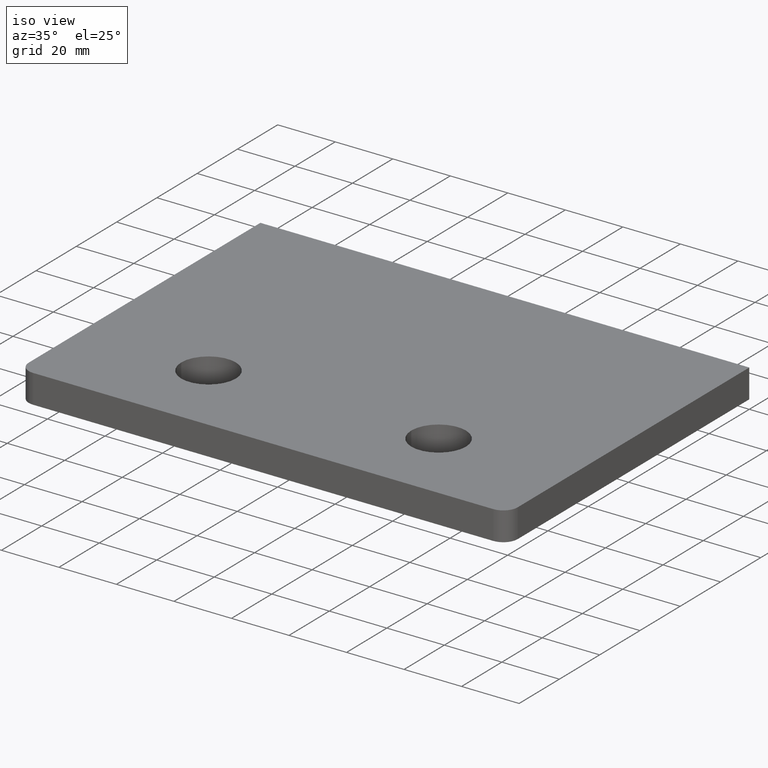
[diagram: clean part render]
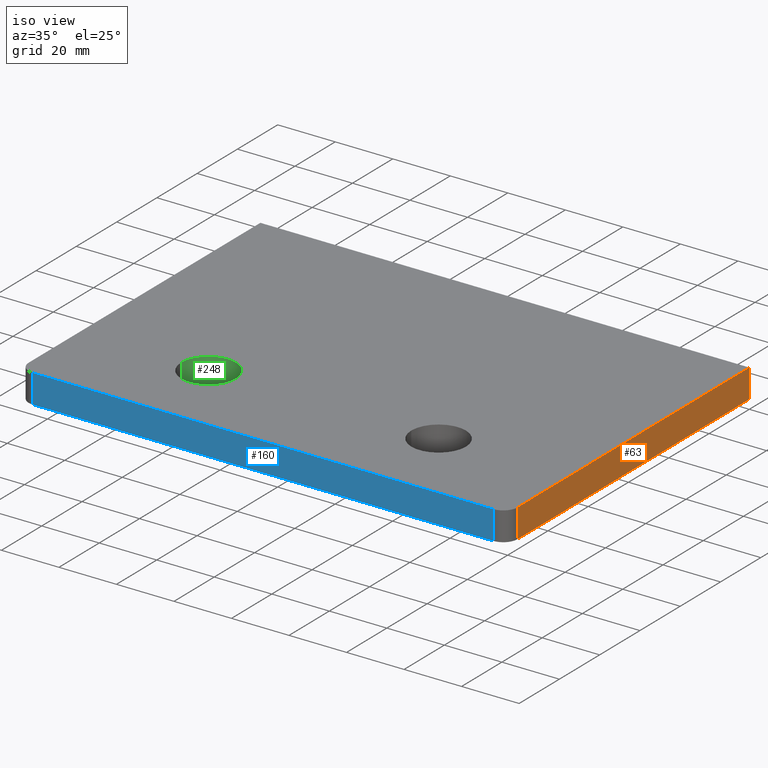
[diagram: same view with three faces highlighted in distinct colors, each labeled with its STEP entity id]
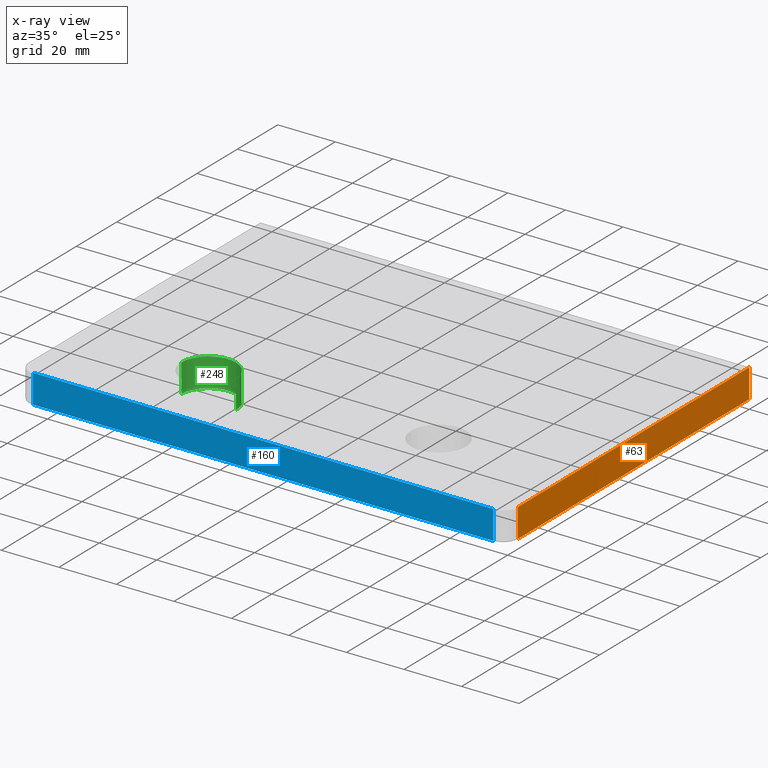
[diagram: x-ray of the same camera — body ghosted, the three highlighted faces saturated]
A machine part, iso view with three faces highlighted in distinct colors.
The next image is the same camera in x-ray (body ghosted, the three faces saturated) — at least one of them is partly hidden behind the body in this view.
Their STEP definitions:

[orange] entity #63 — the highlighted planar face has unit normal (1, -0, 0).
#11 = DIRECTION ( 'NONE',  ( 1.000000000000000000, -8.128421619622342965E-33, 0.000000000000000000 ) ) ;
#32 = VECTOR ( 'NONE', #156, 1000.000000000000000 ) ;
#53 = CARTESIAN_POINT ( 'NONE',  ( 4.064210809811171209E-32, 4.999999999999999112, -10.00000000000000000 ) ) ;
#56 = LINE ( 'NONE', #222, #419 ) ;
#60 = DIRECTION ( 'NONE',  ( 0.000000000000000000, 0.000000000000000000, 1.000000000000000000 ) ) ;
#63 = ADVANCED_FACE ( 'NONE', ( #212 ), #353, .T. ) ;
#81 = ORIENTED_EDGE ( 'NONE', *, *, #233, .T. ) ;
#83 = LINE ( 'NONE', #194, #32 ) ;
#113 = LINE ( 'NONE', #371, #324 ) ;
#148 = VERTEX_POINT ( 'NONE', #210 ) ;
#156 = DIRECTION ( 'NONE',  ( 8.128421619622342965E-33, 1.000000000000000000, 0.000000000000000000 ) ) ;
#158 = ORIENTED_EDGE ( 'NONE', *, *, #226, .F. ) ;
#176 = DIRECTION ( 'NONE',  ( 8.128421619622342965E-33, 1.000000000000000000, 0.000000000000000000 ) ) ;
#194 = CARTESIAN_POINT ( 'NONE',  ( 0.000000000000000000, 0.000000000000000000, 0.000000000000000000 ) ) ;
#205 = VERTEX_POINT ( 'NONE', #433 ) ;
#210 = CARTESIAN_POINT ( 'NONE',  ( 4.064210809811171209E-32, 4.999999999999999112, 0.000000000000000000 ) ) ;
#212 = FACE_OUTER_BOUND ( 'NONE', #227, .T. ) ;
#213 = EDGE_CURVE ( 'NONE', #148, #205, #271, .T. ) ;
#218 = VECTOR ( 'NONE', #334, 1000.000000000000000 ) ;
#222 = CARTESIAN_POINT ( 'NONE',  ( 9.754105943546810464E-31, 120.0000000000000000, -10.00000000000000000 ) ) ;
#226 = EDGE_CURVE ( 'NONE', #148, #406, #83, .T. ) ;
#227 = EDGE_LOOP ( 'NONE', ( #158, #438, #81, #333 ) ) ;
#231 = DIRECTION ( 'NONE',  ( 8.128421619622342965E-33, 1.000000000000000000, 0.000000000000000000 ) ) ;
#233 = EDGE_CURVE ( 'NONE', #205, #446, #113, .T. ) ;
#271 = LINE ( 'NONE', #53, #218 ) ;
#283 = CARTESIAN_POINT ( 'NONE',  ( 0.000000000000000000, 0.000000000000000000, -10.00000000000000000 ) ) ;
#296 = EDGE_CURVE ( 'NONE', #446, #406, #56, .T. ) ;
#308 = CARTESIAN_POINT ( 'NONE',  ( 9.754105943546810464E-31, 120.0000000000000000, 0.000000000000000000 ) ) ;
#324 = VECTOR ( 'NONE', #231, 1000.000000000000000 ) ;
#333 = ORIENTED_EDGE ( 'NONE', *, *, #296, .T. ) ;
#334 = DIRECTION ( 'NONE',  ( -0.000000000000000000, -0.000000000000000000, -1.000000000000000000 ) ) ;
#353 = PLANE ( 'NONE',  #372 ) ;
#371 = CARTESIAN_POINT ( 'NONE',  ( 0.000000000000000000, 0.000000000000000000, -10.00000000000000000 ) ) ;
#372 = AXIS2_PLACEMENT_3D ( 'NONE', #283, #11, #176 ) ;
#386 = CARTESIAN_POINT ( 'NONE',  ( 9.754105943546810464E-31, 120.0000000000000000, -10.00000000000000000 ) ) ;
#406 = VERTEX_POINT ( 'NONE', #308 ) ;
#419 = VECTOR ( 'NONE', #60, 1000.000000000000000 ) ;
#433 = CARTESIAN_POINT ( 'NONE',  ( 4.064210809811171209E-32, 4.999999999999999112, -10.00000000000000000 ) ) ;
#438 = ORIENTED_EDGE ( 'NONE', *, *, #213, .T. ) ;
#446 = VERTEX_POINT ( 'NONE', #386 ) ;

[blue] entity #160 — the highlighted planar face has unit normal (0, -1, 0).
#7 = DIRECTION ( 'NONE',  ( 1.000000000000000000, 1.296684846156020550E-16, 0.000000000000000000 ) ) ;
#10 = EDGE_CURVE ( 'NONE', #270, #453, #131, .T. ) ;
#15 = VERTEX_POINT ( 'NONE', #201 ) ;
#61 = DIRECTION ( 'NONE',  ( 1.000000000000000000, 1.296684846156020550E-16, -0.000000000000000000 ) ) ;
#65 = DIRECTION ( 'NONE',  ( -0.000000000000000000, -0.000000000000000000, -1.000000000000000000 ) ) ;
#77 = VECTOR ( 'NONE', #117, 1000.000000000000000 ) ;
#93 = ORIENTED_EDGE ( 'NONE', *, *, #454, .T. ) ;
#103 = DIRECTION ( 'NONE',  ( 1.296684846156020550E-16, -1.000000000000000000, 0.000000000000000000 ) ) ;
#106 = LINE ( 'NONE', #414, #312 ) ;
#117 = DIRECTION ( 'NONE',  ( 0.000000000000000000, 0.000000000000000000, 1.000000000000000000 ) ) ;
#119 = ORIENTED_EDGE ( 'NONE', *, *, #10, .T. ) ;
#124 = VERTEX_POINT ( 'NONE', #173 ) ;
#131 = LINE ( 'NONE', #203, #150 ) ;
#150 = VECTOR ( 'NONE', #61, 1000.000000000000000 ) ;
#160 = ADVANCED_FACE ( 'NONE', ( #179 ), #361, .T. ) ;
#162 = CARTESIAN_POINT ( 'NONE',  ( -4.999999999999999112, -6.483424230780101763E-16, -10.00000000000000000 ) ) ;
#163 = ORIENTED_EDGE ( 'NONE', *, *, #321, .T. ) ;
#168 = AXIS2_PLACEMENT_3D ( 'NONE', #319, #103, #7 ) ;
#173 = CARTESIAN_POINT ( 'NONE',  ( -165.0000000000000000, -2.139529996157434193E-14, 0.000000000000000000 ) ) ;
#179 = FACE_OUTER_BOUND ( 'NONE', #380, .T. ) ;
#190 = VECTOR ( 'NONE', #65, 1000.000000000000000 ) ;
#201 = CARTESIAN_POINT ( 'NONE',  ( -4.999999999999999112, -6.483424230780101763E-16, 0.000000000000000000 ) ) ;
#203 = CARTESIAN_POINT ( 'NONE',  ( 0.000000000000000000, 0.000000000000000000, -10.00000000000000000 ) ) ;
#206 = EDGE_CURVE ( 'NONE', #124, #15, #106, .T. ) ;
#236 = CARTESIAN_POINT ( 'NONE',  ( -165.0000000000000000, -2.139529996157434193E-14, -10.00000000000000000 ) ) ;
#267 = ORIENTED_EDGE ( 'NONE', *, *, #206, .F. ) ;
#270 = VERTEX_POINT ( 'NONE', #236 ) ;
#305 = CARTESIAN_POINT ( 'NONE',  ( -165.0000000000000000, -2.139529996157434193E-14, -10.00000000000000000 ) ) ;
#312 = VECTOR ( 'NONE', #377, 1000.000000000000000 ) ;
#316 = LINE ( 'NONE', #305, #190 ) ;
#319 = CARTESIAN_POINT ( 'NONE',  ( 0.000000000000000000, 0.000000000000000000, -10.00000000000000000 ) ) ;
#321 = EDGE_CURVE ( 'NONE', #453, #15, #363, .T. ) ;
#361 = PLANE ( 'NONE',  #168 ) ;
#363 = LINE ( 'NONE', #407, #77 ) ;
#377 = DIRECTION ( 'NONE',  ( 1.000000000000000000, 1.296684846156020550E-16, -0.000000000000000000 ) ) ;
#380 = EDGE_LOOP ( 'NONE', ( #119, #163, #267, #93 ) ) ;
#407 = CARTESIAN_POINT ( 'NONE',  ( -4.999999999999999112, -6.483424230780101763E-16, -10.00000000000000000 ) ) ;
#414 = CARTESIAN_POINT ( 'NONE',  ( 0.000000000000000000, 0.000000000000000000, 0.000000000000000000 ) ) ;
#453 = VERTEX_POINT ( 'NONE', #162 ) ;
#454 = EDGE_CURVE ( 'NONE', #124, #270, #316, .T. ) ;

[green] entity #248 — the highlighted cylindrical surface (edge-blend (fillet) strip) has radius 9.5 mm, axis along (-0, -0, 1).
#14 = CARTESIAN_POINT ( 'NONE',  ( -125.0000000000000000, 29.99999999999999289, 3.061616997868380183E-16 ) ) ;
#20 = VECTOR ( 'NONE', #174, 1000.000000000000000 ) ;
#21 = AXIS2_PLACEMENT_3D ( 'NONE', #265, #120, #145 ) ;
#24 = VERTEX_POINT ( 'NONE', #397 ) ;
#29 = ORIENTED_EDGE ( 'NONE', *, *, #282, .T. ) ;
#55 = AXIS2_PLACEMENT_3D ( 'NONE', #14, #200, #303 ) ;
#68 = CARTESIAN_POINT ( 'NONE',  ( -134.5000000000000000, 29.99999999999999289, -10.00000000000000000 ) ) ;
#82 = ORIENTED_EDGE ( 'NONE', *, *, #114, .T. ) ;
#97 = LINE ( 'NONE', #455, #20 ) ;
#105 = CARTESIAN_POINT ( 'NONE',  ( -134.5000000000000000, 29.99999999999999289, 3.061616997868380183E-16 ) ) ;
#114 = EDGE_CURVE ( 'NONE', #24, #369, #219, .T. ) ;
#120 = DIRECTION ( 'NONE',  ( -0.000000000000000000, -0.000000000000000000, 1.000000000000000000 ) ) ;
#122 = EDGE_CURVE ( 'NONE', #24, #370, #376, .T. ) ;
#127 = EDGE_LOOP ( 'NONE', ( #272, #260, #82, #29 ) ) ;
#145 = DIRECTION ( 'NONE',  ( 1.000000000000000000, 0.000000000000000000, 0.000000000000000000 ) ) ;
#174 = DIRECTION ( 'NONE',  ( -0.000000000000000000, -0.000000000000000000, 1.000000000000000000 ) ) ;
#189 = VECTOR ( 'NONE', #217, 1000.000000000000000 ) ;
#192 = CIRCLE ( 'NONE', #55, 9.499999999999994671 ) ;
#200 = DIRECTION ( 'NONE',  ( -0.000000000000000000, -0.000000000000000000, 1.000000000000000000 ) ) ;
#217 = DIRECTION ( 'NONE',  ( -0.000000000000000000, -0.000000000000000000, 1.000000000000000000 ) ) ;
#219 = LINE ( 'NONE', #287, #189 ) ;
#223 = VERTEX_POINT ( 'NONE', #105 ) ;
#239 = AXIS2_PLACEMENT_3D ( 'NONE', #426, #249, #430 ) ;
#248 = ADVANCED_FACE ( 'NONE', ( #340 ), #443, .F. ) ;
#249 = DIRECTION ( 'NONE',  ( 0.000000000000000000, -0.000000000000000000, 1.000000000000000000 ) ) ;
#260 = ORIENTED_EDGE ( 'NONE', *, *, #122, .F. ) ;
#265 = CARTESIAN_POINT ( 'NONE',  ( -125.0000000000000000, 29.99999999999999289, 0.000000000000000000 ) ) ;
#272 = ORIENTED_EDGE ( 'NONE', *, *, #444, .F. ) ;
#273 = CARTESIAN_POINT ( 'NONE',  ( -115.5000000000000000, 29.99999999999999289, 3.061616997868380183E-16 ) ) ;
#282 = EDGE_CURVE ( 'NONE', #369, #223, #192, .T. ) ;
#287 = CARTESIAN_POINT ( 'NONE',  ( -115.5000000000000000, 29.99999999999999289, 0.000000000000000000 ) ) ;
#303 = DIRECTION ( 'NONE',  ( 1.000000000000000000, 0.000000000000000000, 0.000000000000000000 ) ) ;
#340 = FACE_OUTER_BOUND ( 'NONE', #127, .T. ) ;
#369 = VERTEX_POINT ( 'NONE', #273 ) ;
#370 = VERTEX_POINT ( 'NONE', #68 ) ;
#376 = CIRCLE ( 'NONE', #239, 9.499999999999994671 ) ;
#397 = CARTESIAN_POINT ( 'NONE',  ( -115.5000000000000000, 29.99999999999999289, -10.00000000000000000 ) ) ;
#426 = CARTESIAN_POINT ( 'NONE',  ( -125.0000000000000000, 29.99999999999999289, -10.00000000000000000 ) ) ;
#430 = DIRECTION ( 'NONE',  ( 1.000000000000000000, 0.000000000000000000, 0.000000000000000000 ) ) ;
#443 = CYLINDRICAL_SURFACE ( 'NONE', #21, 9.499999999999994671 ) ;
#444 = EDGE_CURVE ( 'NONE', #370, #223, #97, .T. ) ;
#455 = CARTESIAN_POINT ( 'NONE',  ( -134.5000000000000000, 29.99999999999999289, 0.000000000000000000 ) ) ;